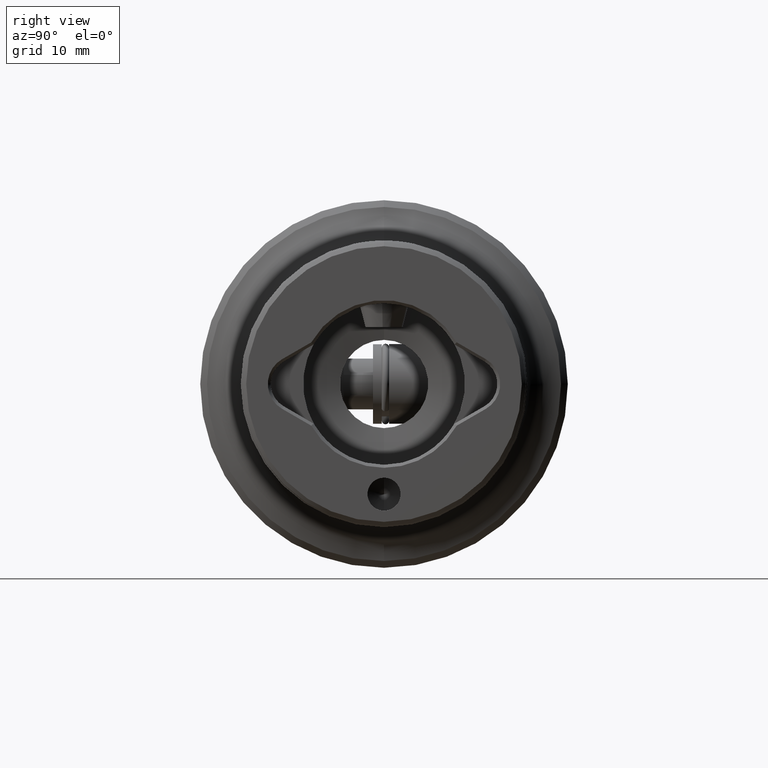
[diagram: clean part render]
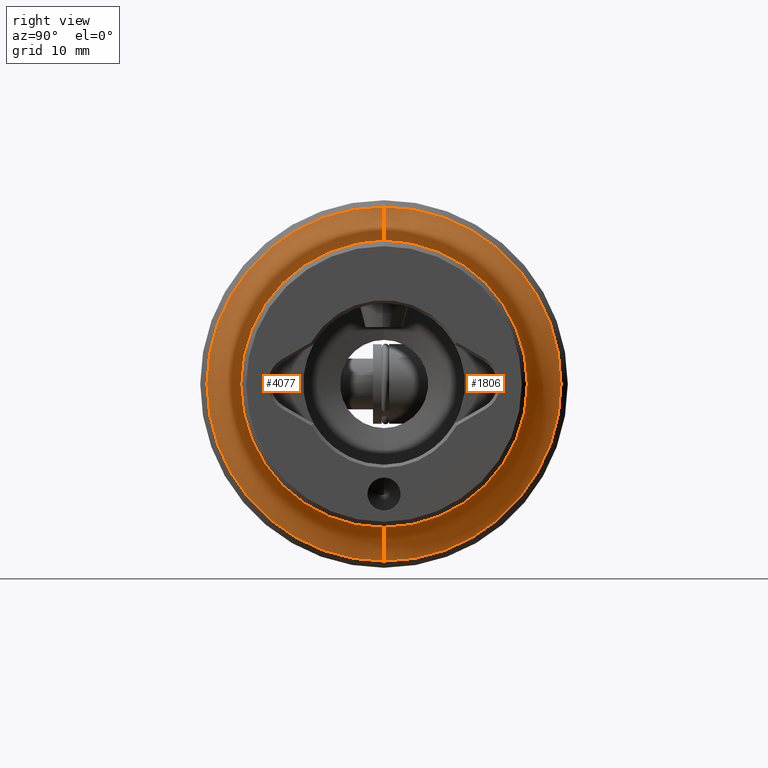
[diagram: same view with one multi-face feature highlighted, each face labeled with its STEP entity id]
A machine part, right view. The highlighted faces form ONE feature: a constant-radius fillet chain: 2 tangent blend faces with common blend radius 5 mm. The faces share edges in the B-rep.
Their STEP definitions:
[1] entity #4077 (Torus):
#3 = DIRECTION ( 'NONE',  ( 1.000000000000000000, 0.0000000000000000000, 0.0000000000000000000 ) ) ;
#23 = AXIS2_PLACEMENT_3D ( 'NONE', #347, #4619, #3320 ) ;
#224 = EDGE_CURVE ( 'NONE', #4128, #5129, #2164, .T. ) ;
#347 = CARTESIAN_POINT ( 'NONE',  ( 46.99999999999999300, 0.0000000000000000000, 0.0000000000000000000 ) ) ;
#456 = EDGE_CURVE ( 'NONE', #5129, #592, #4600, .T. ) ;
#576 = CARTESIAN_POINT ( 'NONE',  ( 46.99999999999999300, 0.0000000000000000000, 19.50000000000000000 ) ) ;
#592 = VERTEX_POINT ( 'NONE', #2624 ) ;
#643 = DIRECTION ( 'NONE',  ( -0.0000000000000000000, 1.000000000000000000, 1.224646799147353200E-016 ) ) ;
#1168 = FACE_OUTER_BOUND ( 'NONE', #2103, .T. ) ;
#1609 = CARTESIAN_POINT ( 'NONE',  ( 42.01739135703734700, 0.0000000000000000000, 0.0000000000000000000 ) ) ;
#1791 = ORIENTED_EDGE ( 'NONE', *, *, #456, .T. ) ;
#2041 = DIRECTION ( 'NONE',  ( 1.000000000000000000, 0.0000000000000000000, 0.0000000000000000000 ) ) ;
#2083 = EDGE_CURVE ( 'NONE', #4128, #3683, #5167, .T. ) ;
#2103 = EDGE_LOOP ( 'NONE', ( #3218, #1791, #3434, #2506 ) ) ;
#2164 = CIRCLE ( 'NONE', #3033, 24.08333333333301600 ) ;
#2289 = CARTESIAN_POINT ( 'NONE',  ( 46.99999999999999300, 0.0000000000000000000, 24.50000000000000000 ) ) ;
#2506 = ORIENTED_EDGE ( 'NONE', *, *, #2083, .F. ) ;
#2556 = CARTESIAN_POINT ( 'NONE',  ( 46.99999999999999300, 0.0000000000000000000, 0.0000000000000000000 ) ) ;
#2624 = CARTESIAN_POINT ( 'NONE',  ( 46.99999999999999300, 2.388061258337338900E-015, -19.50000000000000000 ) ) ;
#2723 = DIRECTION ( 'NONE',  ( 0.0000000000000000000, 0.0000000000000000000, -1.000000000000000000 ) ) ;
#2785 = CIRCLE ( 'NONE', #4013, 19.50000000000000000 ) ;
#2789 = EDGE_CURVE ( 'NONE', #3683, #592, #2785, .T. ) ;
#2916 = CARTESIAN_POINT ( 'NONE',  ( 42.01739135703734700, 2.949357707949255800E-015, -24.08333333335548700 ) ) ;
#2976 = DIRECTION ( 'NONE',  ( 0.0000000000000000000, 0.0000000000000000000, 1.000000000000000000 ) ) ;
#3033 = AXIS2_PLACEMENT_3D ( 'NONE', #1609, #2041, #3749 ) ;
#3218 = ORIENTED_EDGE ( 'NONE', *, *, #224, .T. ) ;
#3320 = DIRECTION ( 'NONE',  ( 0.0000000000000000000, 0.0000000000000000000, 1.000000000000000000 ) ) ;
#3434 = ORIENTED_EDGE ( 'NONE', *, *, #2789, .F. ) ;
#3584 = CARTESIAN_POINT ( 'NONE',  ( 46.99999999999999300, 3.000384657911015500E-015, -24.50000000000000000 ) ) ;
#3683 = VERTEX_POINT ( 'NONE', #576 ) ;
#3749 = DIRECTION ( 'NONE',  ( 0.0000000000000000000, 0.0000000000000000000, -1.000000000000000000 ) ) ;
#4013 = AXIS2_PLACEMENT_3D ( 'NONE', #2556, #3, #2976 ) ;
#4077 = ADVANCED_FACE ( 'NONE', ( #1168 ), #4589, .F. ) ;
#4128 = VERTEX_POINT ( 'NONE', #4212 ) ;
#4212 = CARTESIAN_POINT ( 'NONE',  ( 42.01739135703734700, 0.0000000000000000000, 24.08333333335548700 ) ) ;
#4352 = AXIS2_PLACEMENT_3D ( 'NONE', #2289, #5284, #2723 ) ;
#4589 = TOROIDAL_SURFACE ( 'NONE', #23, 24.50000000000000000, 5.000000000000000000 ) ;
#4600 = CIRCLE ( 'NONE', #4610, 5.000000000000000900 ) ;
#4610 = AXIS2_PLACEMENT_3D ( 'NONE', #3584, #643, #5348 ) ;
#4619 = DIRECTION ( 'NONE',  ( -1.000000000000000000, -0.0000000000000000000, -0.0000000000000000000 ) ) ;
#5129 = VERTEX_POINT ( 'NONE', #2916 ) ;
#5167 = CIRCLE ( 'NONE', #4352, 5.000000000000000900 ) ;
#5284 = DIRECTION ( 'NONE',  ( 0.0000000000000000000, -1.000000000000000000, 0.0000000000000000000 ) ) ;
#5348 = DIRECTION ( 'NONE',  ( 0.0000000000000000000, -1.224646799147353500E-016, 1.000000000000000000 ) ) ;
[2] entity #1806 (Torus):
#67 = CARTESIAN_POINT ( 'NONE',  ( 42.01739135703734700, 0.0000000000000000000, 0.0000000000000000000 ) ) ;
#185 = DIRECTION ( 'NONE',  ( 1.000000000000000000, 0.0000000000000000000, 0.0000000000000000000 ) ) ;
#381 = AXIS2_PLACEMENT_3D ( 'NONE', #4252, #5543, #3827 ) ;
#456 = EDGE_CURVE ( 'NONE', #5129, #592, #4600, .T. ) ;
#492 = DIRECTION ( 'NONE',  ( 0.0000000000000000000, 0.0000000000000000000, -1.000000000000000000 ) ) ;
#557 = ORIENTED_EDGE ( 'NONE', *, *, #2599, .F. ) ;
#576 = CARTESIAN_POINT ( 'NONE',  ( 46.99999999999999300, 0.0000000000000000000, 19.50000000000000000 ) ) ;
#592 = VERTEX_POINT ( 'NONE', #2624 ) ;
#643 = DIRECTION ( 'NONE',  ( -0.0000000000000000000, 1.000000000000000000, 1.224646799147353200E-016 ) ) ;
#846 = AXIS2_PLACEMENT_3D ( 'NONE', #2732, #185, #3154 ) ;
#1523 = EDGE_CURVE ( 'NONE', #5129, #4128, #4171, .T. ) ;
#1806 = ADVANCED_FACE ( 'NONE', ( #3821 ), #1826, .F. ) ;
#1826 = TOROIDAL_SURFACE ( 'NONE', #381, 24.50000000000000000, 5.000000000000000000 ) ;
#2083 = EDGE_CURVE ( 'NONE', #4128, #3683, #5167, .T. ) ;
#2289 = CARTESIAN_POINT ( 'NONE',  ( 46.99999999999999300, 0.0000000000000000000, 24.50000000000000000 ) ) ;
#2599 = EDGE_CURVE ( 'NONE', #592, #3683, #3303, .T. ) ;
#2624 = CARTESIAN_POINT ( 'NONE',  ( 46.99999999999999300, 2.388061258337338900E-015, -19.50000000000000000 ) ) ;
#2723 = DIRECTION ( 'NONE',  ( 0.0000000000000000000, 0.0000000000000000000, -1.000000000000000000 ) ) ;
#2732 = CARTESIAN_POINT ( 'NONE',  ( 46.99999999999999300, 0.0000000000000000000, 0.0000000000000000000 ) ) ;
#2916 = CARTESIAN_POINT ( 'NONE',  ( 42.01739135703734700, 2.949357707949255800E-015, -24.08333333335548700 ) ) ;
#3045 = DIRECTION ( 'NONE',  ( 1.000000000000000000, 0.0000000000000000000, 0.0000000000000000000 ) ) ;
#3154 = DIRECTION ( 'NONE',  ( 0.0000000000000000000, 0.0000000000000000000, 1.000000000000000000 ) ) ;
#3303 = CIRCLE ( 'NONE', #846, 19.50000000000000000 ) ;
#3470 = ORIENTED_EDGE ( 'NONE', *, *, #456, .F. ) ;
#3584 = CARTESIAN_POINT ( 'NONE',  ( 46.99999999999999300, 3.000384657911015500E-015, -24.50000000000000000 ) ) ;
#3683 = VERTEX_POINT ( 'NONE', #576 ) ;
#3821 = FACE_OUTER_BOUND ( 'NONE', #5393, .T. ) ;
#3827 = DIRECTION ( 'NONE',  ( 0.0000000000000000000, 0.0000000000000000000, 1.000000000000000000 ) ) ;
#4128 = VERTEX_POINT ( 'NONE', #4212 ) ;
#4171 = CIRCLE ( 'NONE', #5474, 24.08333333333301600 ) ;
#4212 = CARTESIAN_POINT ( 'NONE',  ( 42.01739135703734700, 0.0000000000000000000, 24.08333333335548700 ) ) ;
#4252 = CARTESIAN_POINT ( 'NONE',  ( 46.99999999999999300, 0.0000000000000000000, 0.0000000000000000000 ) ) ;
#4352 = AXIS2_PLACEMENT_3D ( 'NONE', #2289, #5284, #2723 ) ;
#4600 = CIRCLE ( 'NONE', #4610, 5.000000000000000900 ) ;
#4610 = AXIS2_PLACEMENT_3D ( 'NONE', #3584, #643, #5348 ) ;
#4865 = ORIENTED_EDGE ( 'NONE', *, *, #1523, .T. ) ;
#5057 = ORIENTED_EDGE ( 'NONE', *, *, #2083, .T. ) ;
#5129 = VERTEX_POINT ( 'NONE', #2916 ) ;
#5167 = CIRCLE ( 'NONE', #4352, 5.000000000000000900 ) ;
#5284 = DIRECTION ( 'NONE',  ( 0.0000000000000000000, -1.000000000000000000, 0.0000000000000000000 ) ) ;
#5348 = DIRECTION ( 'NONE',  ( 0.0000000000000000000, -1.224646799147353500E-016, 1.000000000000000000 ) ) ;
#5393 = EDGE_LOOP ( 'NONE', ( #3470, #4865, #5057, #557 ) ) ;
#5474 = AXIS2_PLACEMENT_3D ( 'NONE', #67, #3045, #492 ) ;
#5543 = DIRECTION ( 'NONE',  ( -1.000000000000000000, -0.0000000000000000000, -0.0000000000000000000 ) ) ;